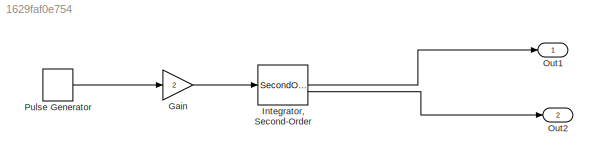
MODEL slx_1629faf0e754
KIND model
CONFIG AbsTol = auto
CONFIG EnableMultiTasking = off
CONFIG FixedStep = auto
CONFIG MaxStep = auto
CONFIG MinStep = auto
CONFIG RelTol = 1e-3
CONFIG SampleTimeConstraint = Unconstrained
CONFIG SolverName = VariableStepAuto
CONFIG StartTime = 0.0
CONFIG StopTime = 10.0
BLOCK [Gain] Gain
  Gain = 2
BLOCK [SecondOrderIntegrator] Integrator, Second-Order
BLOCK [Outport] Out1
BLOCK [Outport] Out2
  Port = 2
BLOCK [DiscretePulseGenerator] Pulse Generator
  Period = 10
  PulseType = Time based
  PulseWidth = 5
LINE Gain:1 -> Integrator, Second-Order:1
LINE Integrator, Second-Order:1 -> Out1:1
LINE Integrator, Second-Order:2 -> Out2:1
LINE Pulse Generator:1 -> Gain:1
